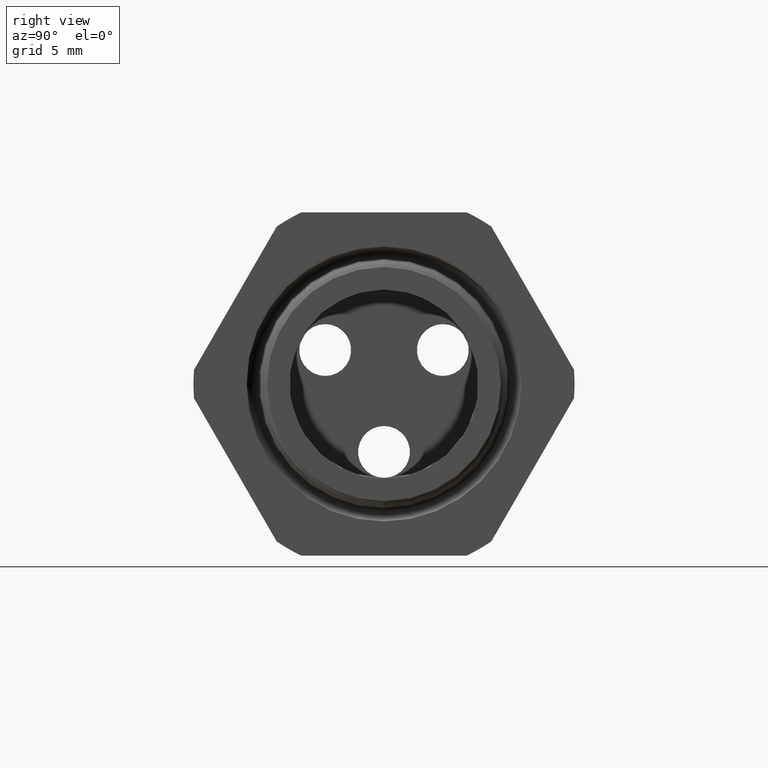
[diagram: clean part render]
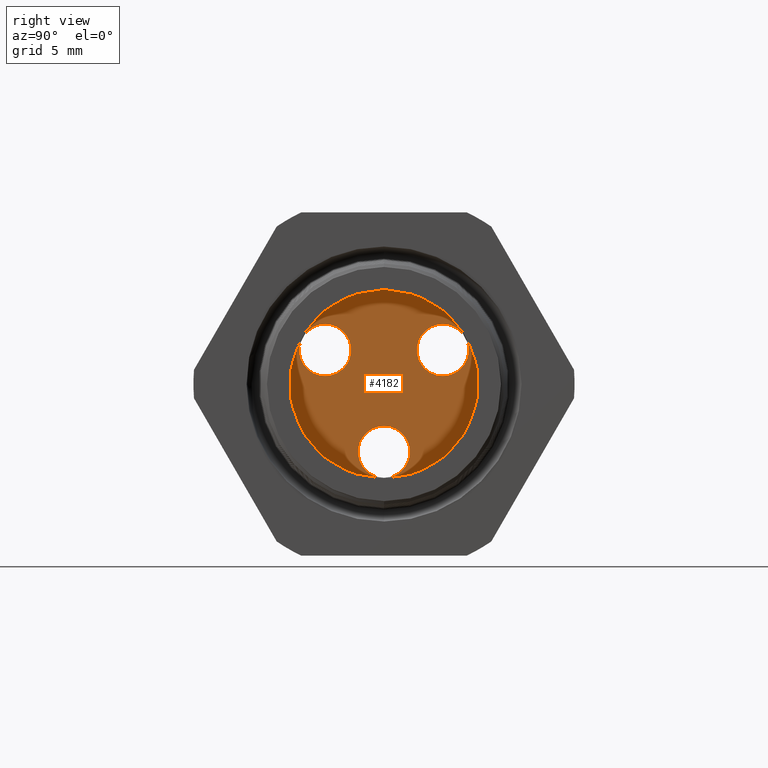
[diagram: same view with one face highlighted and labeled with its STEP entity id]
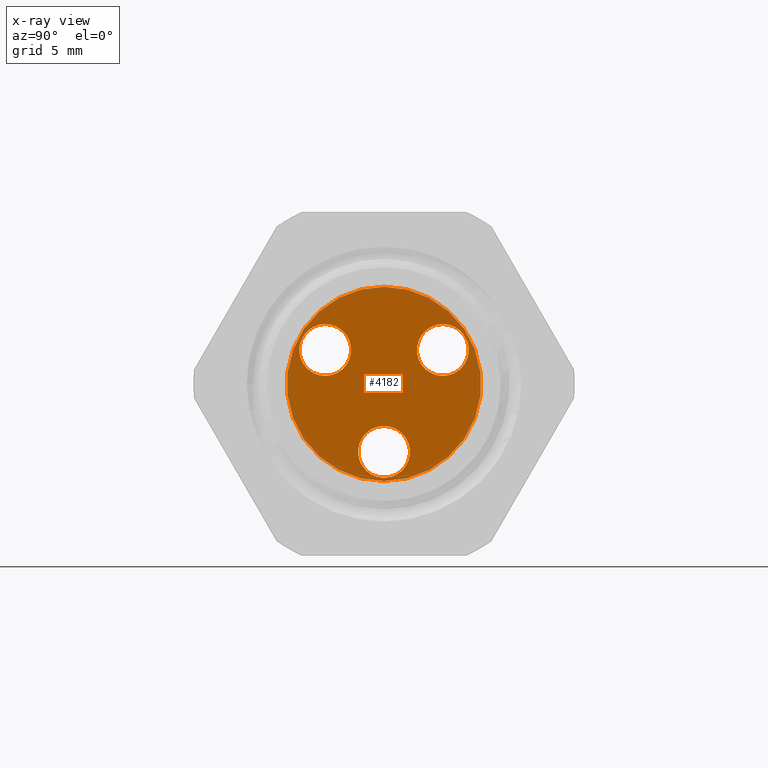
[diagram: x-ray of the same camera — body ghosted, the highlighted face saturated]
A machine part, right view. The second image highlights one B-rep face of the part: STEP entity #4182.
The next image is the same camera in x-ray: the body ghosted, the highlighted face saturated — about 7% of this face is hidden behind the body in this view.
In plain terms, the highlighted planar face has unit normal (-1, 0, 0).
Its self-contained STEP definition (entity closure, byte-faithful):
#2352 = DIRECTION ( 'NONE',  ( 0.0000000000000000000, 0.0000000000000000000, 1.000000000000000000 ) ) ;
#2353 = DIRECTION ( 'NONE',  ( -1.000000000000000000, 0.0000000000000000000, 0.0000000000000000000 ) ) ;
#2354 = CARTESIAN_POINT ( 'NONE',  ( -1.060000000000000100, 0.0000000000000000000, 0.0000000000000000000 ) ) ;
#2355 = AXIS2_PLACEMENT_3D ( 'NONE', #2354, #2353, #2352 ) ;
#2357 = PLANE ( 'NONE',  #2355 ) ;
#2358 = FACE_OUTER_BOUND ( 'NONE', #4147, .T. ) ;
#2359 = FACE_BOUND ( 'NONE', #4208, .T. ) ;
#2360 = FACE_BOUND ( 'NONE', #4181, .T. ) ;
#2361 = FACE_BOUND ( 'NONE', #4171, .T. ) ;
#2364 = DIRECTION ( 'NONE',  ( 0.0000000000000000000, 0.0000000000000000000, 1.000000000000000000 ) ) ;
#2365 = DIRECTION ( 'NONE',  ( -1.000000000000000000, 0.0000000000000000000, 0.0000000000000000000 ) ) ;
#2366 = CARTESIAN_POINT ( 'NONE',  ( -1.060000000000000100, 0.0000000000000000000, 0.0000000000000000000 ) ) ;
#2367 = AXIS2_PLACEMENT_3D ( 'NONE', #2366, #2365, #2364 ) ;
#2368 = CIRCLE ( 'NONE', #2367, 0.2999999999999999300 ) ;
#2389 = DIRECTION ( 'NONE',  ( 0.0000000000000000000, 0.8660254037844363800, -0.5000000000000038900 ) ) ;
#2390 = DIRECTION ( 'NONE',  ( -1.000000000000000000, 0.0000000000000000000, 0.0000000000000000000 ) ) ;
#2391 = CARTESIAN_POINT ( 'NONE',  ( -1.060000000000000100, -0.1815882066655206100, 0.1048400000000008400 ) ) ;
#2392 = AXIS2_PLACEMENT_3D ( 'NONE', #2391, #2390, #2389 ) ;
#2393 = CIRCLE ( 'NONE', #2392, 0.08000000000000000200 ) ;
#2394 = DIRECTION ( 'NONE',  ( 0.0000000000000000000, -0.8660254037844432600, -0.4999999999999919500 ) ) ;
#2395 = DIRECTION ( 'NONE',  ( -1.000000000000000000, 0.0000000000000000000, 0.0000000000000000000 ) ) ;
#2396 = CARTESIAN_POINT ( 'NONE',  ( -1.060000000000000100, 0.1815882066655220300, 0.1048399999999983000 ) ) ;
#2397 = AXIS2_PLACEMENT_3D ( 'NONE', #2396, #2395, #2394 ) ;
#2398 = CIRCLE ( 'NONE', #2397, 0.07999999999999998800 ) ;
#2422 = DIRECTION ( 'NONE',  ( 0.0000000000000000000, 0.0000000000000000000, 1.000000000000000000 ) ) ;
#2423 = DIRECTION ( 'NONE',  ( -1.000000000000000000, 0.0000000000000000000, 0.0000000000000000000 ) ) ;
#2424 = CARTESIAN_POINT ( 'NONE',  ( -1.060000000000000300, 0.0000000000000000000, -0.2096799999999999500 ) ) ;
#2425 = AXIS2_PLACEMENT_3D ( 'NONE', #2424, #2423, #2422 ) ;
#2426 = CIRCLE ( 'NONE', #2425, 0.07999999999999998800 ) ;
#3184 = CARTESIAN_POINT ( 'NONE',  ( -1.060000000000000100, 0.1815882066655220300, 0.1848399999999982800 ) ) ;
#3185 = CARTESIAN_POINT ( 'NONE',  ( -1.060000000000000100, 0.1815882066655220300, 0.02483999999999830800 ) ) ;
#3186 = DIRECTION ( 'NONE',  ( 0.0000000000000000000, -0.8660254037844432600, -0.4999999999999919500 ) ) ;
#3187 = DIRECTION ( 'NONE',  ( -1.000000000000000000, 0.0000000000000000000, 0.0000000000000000000 ) ) ;
#3188 = CARTESIAN_POINT ( 'NONE',  ( -1.060000000000000100, 0.1815882066655220300, 0.1048399999999983000 ) ) ;
#3189 = AXIS2_PLACEMENT_3D ( 'NONE', #3188, #3187, #3186 ) ;
#3190 = CIRCLE ( 'NONE', #3189, 0.07999999999999998800 ) ;
#3202 = CARTESIAN_POINT ( 'NONE',  ( -1.060000000000000100, 3.673940397442058900E-017, -0.2999999999999999300 ) ) ;
#3285 = CARTESIAN_POINT ( 'NONE',  ( -1.060000000000000100, 0.0000000000000000000, 0.0000000000000000000 ) ) ;
#3325 = CARTESIAN_POINT ( 'NONE',  ( -1.060000000000000100, -0.1815882066655206100, 0.1848400000000008400 ) ) ;
#3326 = CARTESIAN_POINT ( 'NONE',  ( -1.060000000000000100, -0.1815882066655206100, 0.02484000000000085100 ) ) ;
#3327 = DIRECTION ( 'NONE',  ( 0.0000000000000000000, 0.8660254037844363800, -0.5000000000000038900 ) ) ;
#3328 = DIRECTION ( 'NONE',  ( -1.000000000000000000, 0.0000000000000000000, 0.0000000000000000000 ) ) ;
#3329 = CARTESIAN_POINT ( 'NONE',  ( -1.060000000000000100, -0.1815882066655206100, 0.1048400000000008400 ) ) ;
#3330 = AXIS2_PLACEMENT_3D ( 'NONE', #3329, #3328, #3327 ) ;
#3331 = CIRCLE ( 'NONE', #3330, 0.08000000000000000200 ) ;
#3338 = CARTESIAN_POINT ( 'NONE',  ( -1.060000000000000100, 0.0000000000000000000, 0.2999999999999999300 ) ) ;
#3339 = DIRECTION ( 'NONE',  ( 0.0000000000000000000, 0.0000000000000000000, 1.000000000000000000 ) ) ;
#3340 = DIRECTION ( 'NONE',  ( -1.000000000000000000, 0.0000000000000000000, 0.0000000000000000000 ) ) ;
#3341 = AXIS2_PLACEMENT_3D ( 'NONE', #3285, #3340, #3339 ) ;
#3342 = CIRCLE ( 'NONE', #3341, 0.2999999999999999300 ) ;
#3469 = CARTESIAN_POINT ( 'NONE',  ( -1.060000000000000300, 0.0000000000000000000, -0.1296799999999999900 ) ) ;
#3470 = CARTESIAN_POINT ( 'NONE',  ( -1.060000000000000300, 9.797174393178824000E-018, -0.2896799999999999400 ) ) ;
#3471 = DIRECTION ( 'NONE',  ( 0.0000000000000000000, 0.0000000000000000000, 1.000000000000000000 ) ) ;
#3472 = DIRECTION ( 'NONE',  ( -1.000000000000000000, 0.0000000000000000000, 0.0000000000000000000 ) ) ;
#3473 = CARTESIAN_POINT ( 'NONE',  ( -1.060000000000000300, 0.0000000000000000000, -0.2096799999999999500 ) ) ;
#3474 = AXIS2_PLACEMENT_3D ( 'NONE', #3473, #3472, #3471 ) ;
#3475 = CIRCLE ( 'NONE', #3474, 0.07999999999999998800 ) ;
#4145 = ORIENTED_EDGE ( 'NONE', *, *, #4168, .F. ) ;
#4147 = EDGE_LOOP ( 'NONE', ( #4209, #4145 ) ) ;
#4168 = EDGE_CURVE ( 'NONE', #4590, #4652, #2368, .T. ) ;
#4171 = EDGE_LOOP ( 'NONE', ( #4172, #4193 ) ) ;
#4172 = ORIENTED_EDGE ( 'NONE', *, *, #4189, .T. ) ;
#4181 = EDGE_LOOP ( 'NONE', ( #4187, #4204 ) ) ;
#4182 = ADVANCED_FACE ( 'NONE', ( #2361, #2360, #2359, #2358 ), #2357, .F. ) ;
#4187 = ORIENTED_EDGE ( 'NONE', *, *, #4191, .T. ) ;
#4189 = EDGE_CURVE ( 'NONE', #4600, #4599, #2398, .T. ) ;
#4191 = EDGE_CURVE ( 'NONE', #4657, #4656, #2393, .T. ) ;
#4193 = ORIENTED_EDGE ( 'NONE', *, *, #4598, .T. ) ;
#4204 = ORIENTED_EDGE ( 'NONE', *, *, #4655, .T. ) ;
#4205 = EDGE_CURVE ( 'NONE', #4720, #4719, #2426, .T. ) ;
#4206 = ORIENTED_EDGE ( 'NONE', *, *, #4205, .T. ) ;
#4208 = EDGE_LOOP ( 'NONE', ( #4206, #4210 ) ) ;
#4209 = ORIENTED_EDGE ( 'NONE', *, *, #4651, .F. ) ;
#4210 = ORIENTED_EDGE ( 'NONE', *, *, #4718, .T. ) ;
#4590 = VERTEX_POINT ( 'NONE', #3202 ) ;
#4598 = EDGE_CURVE ( 'NONE', #4599, #4600, #3190, .T. ) ;
#4599 = VERTEX_POINT ( 'NONE', #3185 ) ;
#4600 = VERTEX_POINT ( 'NONE', #3184 ) ;
#4651 = EDGE_CURVE ( 'NONE', #4652, #4590, #3342, .T. ) ;
#4652 = VERTEX_POINT ( 'NONE', #3338 ) ;
#4655 = EDGE_CURVE ( 'NONE', #4656, #4657, #3331, .T. ) ;
#4656 = VERTEX_POINT ( 'NONE', #3326 ) ;
#4657 = VERTEX_POINT ( 'NONE', #3325 ) ;
#4718 = EDGE_CURVE ( 'NONE', #4719, #4720, #3475, .T. ) ;
#4719 = VERTEX_POINT ( 'NONE', #3470 ) ;
#4720 = VERTEX_POINT ( 'NONE', #3469 ) ;